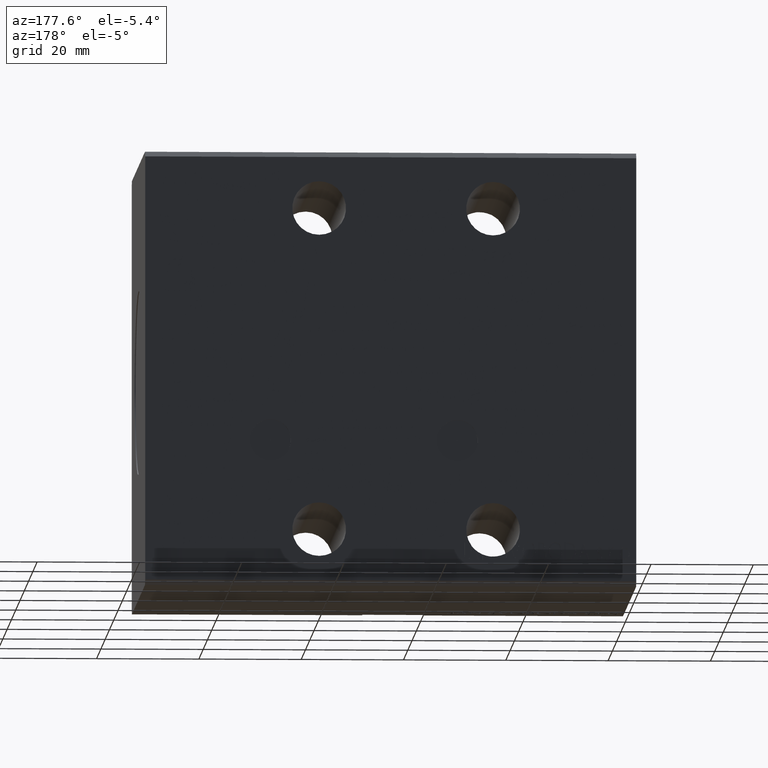
[diagram: clean part render]
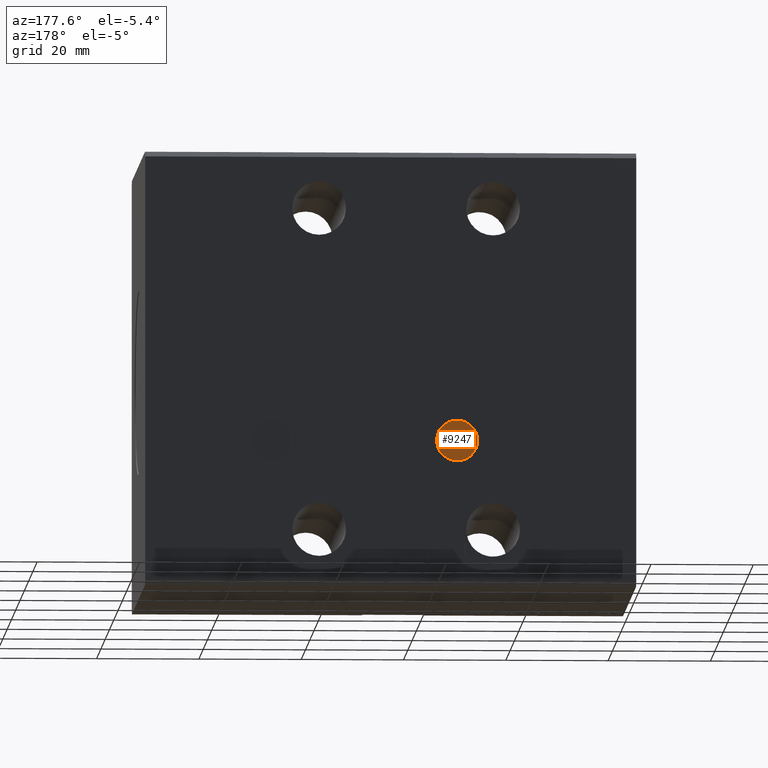
[diagram: same view with one face highlighted and labeled with its STEP entity id]
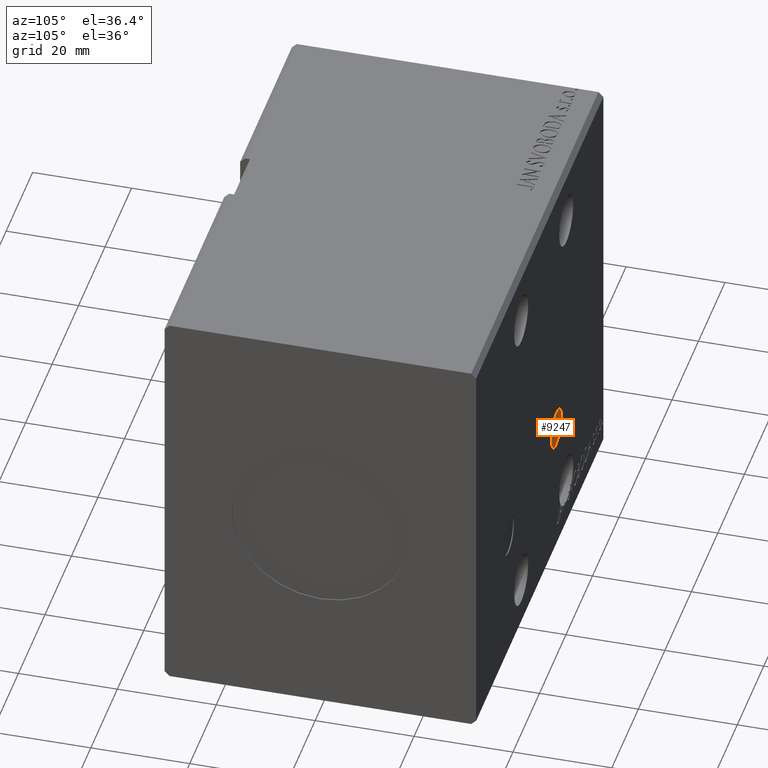
[diagram: same view with one face highlighted and labeled with its STEP entity id]
A machine part, auxiliary view. The second image highlights one B-rep face of the part: STEP entity #9247.
A second angle (auxiliary view) of the same face is appended — the face is thin or edge-on in the first view.
In plain terms, the highlighted planar face has unit normal (0, 1, 0).
Its self-contained STEP definition (entity closure, byte-faithful):
#168 = VERTEX_POINT ( 'NONE', #35829 ) ;
#3210 = ORIENTED_EDGE ( 'NONE', *, *, #11286, .T. ) ;
#4847 = AXIS2_PLACEMENT_3D ( 'NONE', #16124, #31159, #12635 ) ;
#6136 = AXIS2_PLACEMENT_3D ( 'NONE', #31608, #15980, #16726 ) ;
#8065 = VERTEX_POINT ( 'NONE', #38891 ) ;
#9247 = ADVANCED_FACE ( 'NONE', ( #34901 ), #19257, .T. ) ;
#9392 = CARTESIAN_POINT ( 'NONE',  ( 35.00000000000000000, 31.30000000000001492, -14.00000000000000888 ) ) ;
#11286 = EDGE_CURVE ( 'NONE', #168, #8065, #26522, .T. ) ;
#12079 = DIRECTION ( 'NONE',  ( 0.000000000000000000, 1.000000000000000000, 0.000000000000000000 ) ) ;
#12635 = DIRECTION ( 'NONE',  ( 0.000000000000000000, 0.000000000000000000, 1.000000000000000000 ) ) ;
#14006 = EDGE_LOOP ( 'NONE', ( #3210, #36853 ) ) ;
#15980 = DIRECTION ( 'NONE',  ( 0.000000000000000000, 1.000000000000000000, 0.000000000000000000 ) ) ;
#16124 = CARTESIAN_POINT ( 'NONE',  ( 35.00000000000000000, 31.30000000000001492, -14.00000000000000888 ) ) ;
#16726 = DIRECTION ( 'NONE',  ( 0.000000000000000000, -0.000000000000000000, 1.000000000000000000 ) ) ;
#16911 = CIRCLE ( 'NONE', #35973, 4.000000000000000000 ) ;
#18647 = EDGE_CURVE ( 'NONE', #8065, #168, #16911, .T. ) ;
#18648 = DIRECTION ( 'NONE',  ( 0.000000000000000000, 0.000000000000000000, 1.000000000000000000 ) ) ;
#19257 = PLANE ( 'NONE',  #6136 ) ;
#26522 = CIRCLE ( 'NONE', #4847, 4.000000000000000000 ) ;
#31159 = DIRECTION ( 'NONE',  ( 0.000000000000000000, 1.000000000000000000, 0.000000000000000000 ) ) ;
#31608 = CARTESIAN_POINT ( 'NONE',  ( 35.00000000000000000, 31.30000000000001492, -14.00000000000000888 ) ) ;
#34901 = FACE_OUTER_BOUND ( 'NONE', #14006, .T. ) ;
#35829 = CARTESIAN_POINT ( 'NONE',  ( 35.00000000000000000, 31.30000000000001492, -10.00000000000000888 ) ) ;
#35973 = AXIS2_PLACEMENT_3D ( 'NONE', #9392, #12079, #18648 ) ;
#36853 = ORIENTED_EDGE ( 'NONE', *, *, #18647, .T. ) ;
#38891 = CARTESIAN_POINT ( 'NONE',  ( 35.00000000000000000, 31.30000000000001492, -18.00000000000001066 ) ) ;